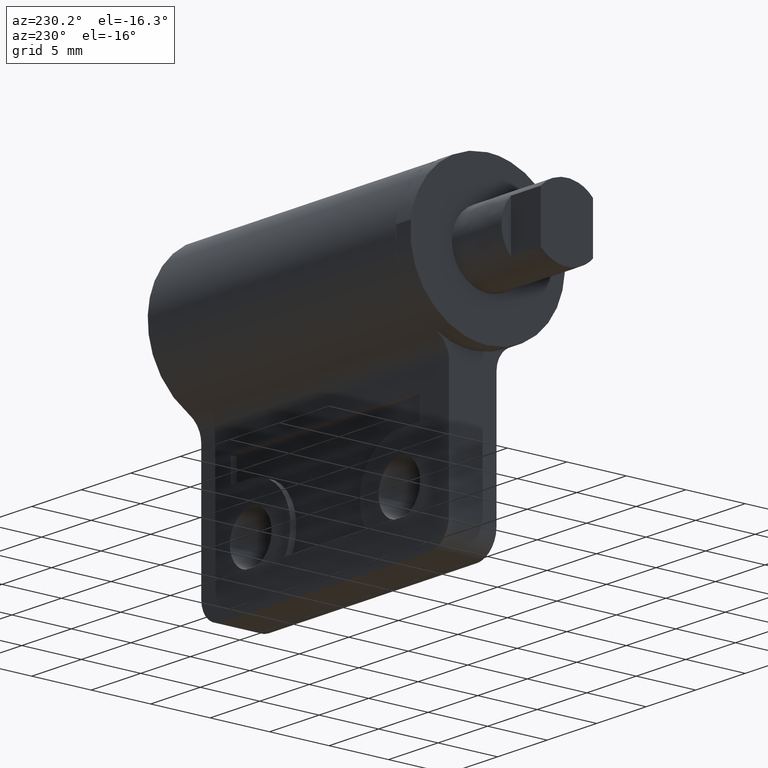
[diagram: clean part render]
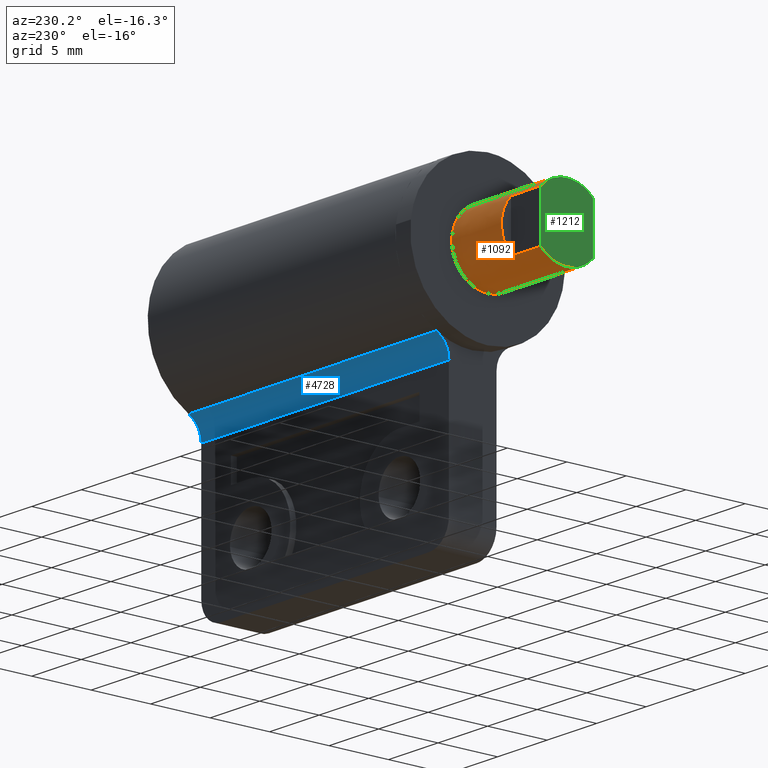
[diagram: same view with three faces highlighted in distinct colors, each labeled with its STEP entity id]
A machine part, auxiliary view with three faces highlighted in distinct colors.
Their STEP definitions:

[orange] entity #1092 — the highlighted face is a freeform B-spline surface patch.
#918=CARTESIAN_POINT('',(5.200000000000002,-0.947927683204385,2.846301654325269));
#919=CARTESIAN_POINT('',(5.200000000000002,-0.520353104034003,2.988700398187908));
#920=CARTESIAN_POINT('',(5.200000000000001,-0.069811827973402,2.999187608115739));
#921=CARTESIAN_POINT('',(5.200000000000001,2.929375780142338,3.068999436089141));
#922=CARTESIAN_POINT('',(5.200000000000001,2.999187608115739,0.069811827973402));
#923=CARTESIAN_POINT('',(5.200000000000001,3.068999436089141,-2.929375780142338));
#924=CARTESIAN_POINT('',(5.200000000000001,0.069811827973402,-2.999187608115739));
#925=CARTESIAN_POINT('',(5.200000000000001,-2.929375780142338,-3.068999436089141));
#926=CARTESIAN_POINT('',(5.200000000000001,-2.999187608115739,-0.069811827973402));
#927=CARTESIAN_POINT('',(-3.205000000000000,-0.947927683204385,2.846301654325269));
#928=CARTESIAN_POINT('',(-3.205000000000000,-0.520353104034003,2.988700398187908));
#929=CARTESIAN_POINT('',(-3.205000000000000,-0.069811827973402,2.999187608115739));
#930=CARTESIAN_POINT('',(-3.205000000000000,2.929375780142338,3.068999436089141));
#931=CARTESIAN_POINT('',(-3.205000000000000,2.999187608115739,0.069811827973402));
#932=CARTESIAN_POINT('',(-3.205000000000000,3.068999436089141,-2.929375780142338));
#933=CARTESIAN_POINT('',(-3.205000000000000,0.069811827973402,-2.999187608115739));
#934=CARTESIAN_POINT('',(-3.205000000000000,-2.929375780142338,-3.068999436089141));
#935=CARTESIAN_POINT('',(-3.205000000000000,-2.999187608115739,-0.069811827973402));
#943=(BOUNDED_SURFACE()B_SPLINE_SURFACE(2,1,((#918,#927),(#919,#928),(#920,#929),(#921,#930),(#922,#931),(#923,#932),(#924,#933),(#925,#934),(#926,#935)),.UNSPECIFIED.,.F.,.F.,.U.)B_SPLINE_SURFACE_WITH_KNOTS((3,2,2,2,3),(2,2),(0.0,0.994112549695428,5.964675298172566,10.935238046649710,15.905800795126840),(0.0,8.405000000000003),.UNSPECIFIED.)GEOMETRIC_REPRESENTATION_ITEM()RATIONAL_B_SPLINE_SURFACE(((0.906274169979695,0.906274169979695),(0.941421356237309,0.941421356237309),(1.0,1.0),(0.707106781186548,0.707106781186548),(1.0,1.0),(0.707106781186548,0.707106781186548),(1.0,1.0),(0.707106781186548,0.707106781186548),(1.0,1.0)))REPRESENTATION_ITEM('')SURFACE());
#944=CARTESIAN_POINT('',(5.0,-0.947927683211403,2.846301654322932));
#945=VERTEX_POINT('',#944);
#946=CARTESIAN_POINT('',(5.0,0.0,3.0));
#947=VERTEX_POINT('',#946);
#948=CARTESIAN_POINT('',(5.0,-0.947927683211403,2.846301654322932));
#949=CARTESIAN_POINT('',(5.0,-0.486424276029893,3.000000000000000));
#950=CARTESIAN_POINT('',(5.0,0.0,3.0));
#958=(BOUNDED_CURVE()B_SPLINE_CURVE(2,(#948,#949,#950),.UNSPECIFIED.,.F.,.U.)B_SPLINE_CURVE_WITH_KNOTS((3,3),(0.946282106302413,1.0),.UNSPECIFIED.)CURVE()GEOMETRIC_REPRESENTATION_ITEM()RATIONAL_B_SPLINE_CURVE((0.901176784606171,0.937065572828139,1.0))REPRESENTATION_ITEM(''));
#959=EDGE_CURVE('',#945,#947,#958,.T.);
#960=ORIENTED_EDGE('',*,*,#959,.T.);
#961=CARTESIAN_POINT('',(5.0,0.0,-3.0));
#962=VERTEX_POINT('',#961);
#963=CARTESIAN_POINT('',(5.0,0.0,3.0));
#964=CARTESIAN_POINT('',(5.000000000000001,3.0,3.0));
#965=CARTESIAN_POINT('',(5.0,3.0,0.0));
#966=CARTESIAN_POINT('',(5.000000000000001,3.0,-3.0));
#967=CARTESIAN_POINT('',(5.0,0.0,-3.0));
#975=(BOUNDED_CURVE()B_SPLINE_CURVE(2,(#963,#964,#965,#966,#967),.UNSPECIFIED.,.F.,.U.)B_SPLINE_CURVE_WITH_KNOTS((3,2,3),(0.0,0.250000000000000,0.500000000000000),.UNSPECIFIED.)CURVE()GEOMETRIC_REPRESENTATION_ITEM()RATIONAL_B_SPLINE_CURVE((1.0,0.707106781186548,1.0,0.707106781186548,1.0))REPRESENTATION_ITEM(''));
#976=EDGE_CURVE('',#947,#962,#975,.T.);
#977=ORIENTED_EDGE('',*,*,#976,.T.);
#978=CARTESIAN_POINT('',(4.999999999999999,-2.999187713842665,-0.069807285540696));
#979=VERTEX_POINT('',#978);
#980=CARTESIAN_POINT('',(5.0,0.0,-3.0));
#981=CARTESIAN_POINT('',(5.000000000000001,-2.930986314326018,-3.000000000000000));
#982=CARTESIAN_POINT('',(4.999999999999999,-2.999187713842665,-0.069807285540696));
#990=(BOUNDED_CURVE()B_SPLINE_CURVE(2,(#980,#981,#982),.UNSPECIFIED.,.F.,.U.)B_SPLINE_CURVE_WITH_KNOTS((3,3),(0.500000000000000,0.745905742958735),.UNSPECIFIED.)CURVE()GEOMETRIC_REPRESENTATION_ITEM()RATIONAL_B_SPLINE_CURVE((1.0,0.711903501680411,0.990563671065530))REPRESENTATION_ITEM(''));
#991=EDGE_CURVE('',#962,#979,#990,.T.);
#992=ORIENTED_EDGE('',*,*,#991,.T.);
#993=CARTESIAN_POINT('',(-3.330669E-016,-2.999187607261801,-0.069811864659457));
#994=VERTEX_POINT('',#993);
#995=CARTESIAN_POINT('',(4.999999999999999,-2.999187713842665,-0.069807285540696));
#996=CARTESIAN_POINT('',(-3.330669E-016,-2.999187607261801,-0.069811864659457));
#997=QUASI_UNIFORM_CURVE('',1,(#995,#996),.UNSPECIFIED.,.F.,.U.);
#998=EDGE_CURVE('',#979,#994,#997,.T.);
#999=ORIENTED_EDGE('',*,*,#998,.T.);
#1000=CARTESIAN_POINT('',(0.0,-2.200000000000000,-2.039607805437110));
#1001=VERTEX_POINT('',#1000);
#1002=CARTESIAN_POINT('',(0.0,-2.200000000000002,-2.039607805437112));
#1003=CARTESIAN_POINT('',(0.0,-2.972738243980980,-1.206102397080520));
#1004=CARTESIAN_POINT('',(-3.330669E-016,-2.999187607261800,-0.069811864659457));
#1012=(BOUNDED_CURVE()B_SPLINE_CURVE(2,(#1002,#1003,#1004),.UNSPECIFIED.,.F.,.U.)B_SPLINE_CURVE_WITH_KNOTS((3,3),(0.0,0.485165814498718),.UNSPECIFIED.)CURVE()GEOMETRIC_REPRESENTATION_ITEM()RATIONAL_B_SPLINE_CURVE((1.0,0.870622449467009,0.866784028298393))REPRESENTATION_ITEM(''));
#1013=EDGE_CURVE('',#1001,#994,#1012,.T.);
#1014=ORIENTED_EDGE('',*,*,#1013,.F.);
#1015=CARTESIAN_POINT('',(-3.0,-2.200000000000000,-2.039607805437110));
#1016=VERTEX_POINT('',#1015);
#1017=CARTESIAN_POINT('',(-3.0,-2.200000000000000,-2.039607805437110));
#1018=CARTESIAN_POINT('',(0.0,-2.200000000000000,-2.039607805437110));
#1019=QUASI_UNIFORM_CURVE('',1,(#1017,#1018),.UNSPECIFIED.,.F.,.U.);
#1020=EDGE_CURVE('',#1016,#1001,#1019,.T.);
#1021=ORIENTED_EDGE('',*,*,#1020,.F.);
#1022=CARTESIAN_POINT('',(-3.0,2.200000000000000,-2.039608000000000));
#1023=VERTEX_POINT('',#1022);
#1024=CARTESIAN_POINT('',(-3.0,2.200000000000000,-2.039608000000000));
#1025=CARTESIAN_POINT('',(-3.0,1.309625606051334,-3.000000031142777));
#1026=CARTESIAN_POINT('',(-3.0,-0.000000071339723,-2.999999999999999));
#1027=CARTESIAN_POINT('',(-3.0,-1.309625748730780,-2.999999968857222));
#1028=CARTESIAN_POINT('',(-3.0,-2.200000000000002,-2.039607805437112));
#1036=(BOUNDED_CURVE()B_SPLINE_CURVE(2,(#1024,#1025,#1026,#1027,#1028),.UNSPECIFIED.,.F.,.U.)B_SPLINE_CURVE_WITH_KNOTS((3,2,3),(0.0,0.500000000000000,1.0),.UNSPECIFIED.)CURVE()GEOMETRIC_REPRESENTATION_ITEM()RATIONAL_B_SPLINE_CURVE((1.0,0.916479483108497,1.0,0.916479483108497,1.0))REPRESENTATION_ITEM(''));
#1037=EDGE_CURVE('',#1023,#1016,#1036,.T.);
#1038=ORIENTED_EDGE('',*,*,#1037,.F.);
#1039=CARTESIAN_POINT('',(0.0,2.200000000000000,-2.039608000000000));
#1040=VERTEX_POINT('',#1039);
#1041=CARTESIAN_POINT('',(-3.0,2.200000000000000,-2.039608000000000));
#1042=CARTESIAN_POINT('',(0.0,2.200000000000000,-2.039608000000000));
#1043=QUASI_UNIFORM_CURVE('',1,(#1041,#1042),.UNSPECIFIED.,.F.,.U.);
#1044=EDGE_CURVE('',#1023,#1040,#1043,.T.);
#1045=ORIENTED_EDGE('',*,*,#1044,.T.);
#1046=CARTESIAN_POINT('',(0.0,2.200000000000000,2.039607805437110));
#1047=VERTEX_POINT('',#1046);
#1048=CARTESIAN_POINT('',(0.0,2.200000000000002,2.039607805437112));
#1049=CARTESIAN_POINT('',(0.0,4.090909181098173,-0.000000097281443));
#1050=CARTESIAN_POINT('',(0.0,2.200000000000000,-2.039608000000000));
#1058=(BOUNDED_CURVE()B_SPLINE_CURVE(2,(#1048,#1049,#1050),.UNSPECIFIED.,.F.,.U.)CURVE()GEOMETRIC_REPRESENTATION_ITEM()QUASI_UNIFORM_CURVE()RATIONAL_B_SPLINE_CURVE((1.0,0.733333317166106,1.0))REPRESENTATION_ITEM(''));
#1059=EDGE_CURVE('',#1047,#1040,#1058,.T.);
#1060=ORIENTED_EDGE('',*,*,#1059,.F.);
#1061=CARTESIAN_POINT('',(-3.0,2.200000000000000,2.039607999999790));
#1062=VERTEX_POINT('',#1061);
#1063=CARTESIAN_POINT('',(-3.0,2.200000000000000,2.039607999999790));
#1064=CARTESIAN_POINT('',(0.0,2.200000000000000,2.039607805437110));
#1065=QUASI_UNIFORM_CURVE('',1,(#1063,#1064),.UNSPECIFIED.,.F.,.U.);
#1066=EDGE_CURVE('',#1062,#1047,#1065,.T.);
#1067=ORIENTED_EDGE('',*,*,#1066,.F.);
#1068=CARTESIAN_POINT('',(-2.999999999999999,-0.947926840408719,2.846301944789479));
#1069=VERTEX_POINT('',#1068);
#1070=CARTESIAN_POINT('',(-3.000000000000000,-0.947926840408719,2.846301944789479));
#1071=CARTESIAN_POINT('',(-3.000000000000000,-0.486423355966698,3.000000000000000));
#1072=CARTESIAN_POINT('',(-3.0,0.0,3.0));
#1073=CARTESIAN_POINT('',(-3.000000000000000,1.309625634923723,3.000000000000000));
#1074=CARTESIAN_POINT('',(-3.0,2.200000000000000,2.039607999999790));
#1082=(BOUNDED_CURVE()B_SPLINE_CURVE(2,(#1070,#1071,#1072,#1073,#1074),.UNSPECIFIED.,.F.,.U.)B_SPLINE_CURVE_WITH_KNOTS((3,2,3),(0.303999281456258,0.500000000000000,1.0),.UNSPECIFIED.)CURVE()GEOMETRIC_REPRESENTATION_ITEM()RATIONAL_B_SPLINE_CURVE((0.960188058588786,0.967259839216970,1.0,0.916479487865440,1.0))REPRESENTATION_ITEM(''));
#1083=EDGE_CURVE('',#1069,#1062,#1082,.T.);
#1084=ORIENTED_EDGE('',*,*,#1083,.F.);
#1085=CARTESIAN_POINT('',(5.0,-0.947927683211403,2.846301654322932));
#1086=CARTESIAN_POINT('',(-2.999999999999999,-0.947926840408719,2.846301944789479));
#1087=QUASI_UNIFORM_CURVE('',1,(#1085,#1086),.UNSPECIFIED.,.F.,.U.);
#1088=EDGE_CURVE('',#945,#1069,#1087,.T.);
#1089=ORIENTED_EDGE('',*,*,#1088,.F.);
#1090=EDGE_LOOP('',(#960,#977,#992,#999,#1014,#1021,#1038,#1045,#1060,#1067,#1084,#1089));
#1091=FACE_OUTER_BOUND('',#1090,.T.);
#1092=ADVANCED_FACE('',(#1091),#943,.T.);

[blue] entity #4728 — the highlighted face is a freeform B-spline surface patch.
#4557=CARTESIAN_POINT('',(31.500000000000000,1.999999999999800,-7.500000000000000));
#4558=VERTEX_POINT('',#4557);
#4564=CARTESIAN_POINT('',(31.500000000000000,3.058823527436040,-5.735294118700780));
#4565=VERTEX_POINT('',#4564);
#4566=CARTESIAN_POINT('',(31.500000000000000,3.058823527436040,-5.735294118700779));
#4567=CARTESIAN_POINT('',(31.500000000000000,2.0,-6.300000001522625));
#4568=CARTESIAN_POINT('',(31.500000000000000,1.999999999999800,-7.500000000000000));
#4576=(BOUNDED_CURVE()B_SPLINE_CURVE(2,(#4566,#4567,#4568),.UNSPECIFIED.,.F.,.U.)CURVE()GEOMETRIC_REPRESENTATION_ITEM()QUASI_UNIFORM_CURVE()RATIONAL_B_SPLINE_CURVE((1.0,0.857492926000553,1.0))REPRESENTATION_ITEM(''));
#4577=EDGE_CURVE('',#4565,#4558,#4576,.T.);
#4627=CARTESIAN_POINT('',(6.500000000000000,1.999999999999800,-7.500000000000000));
#4628=VERTEX_POINT('',#4627);
#4657=CARTESIAN_POINT('',(6.500000000000000,3.058823527436040,-5.735294118700780));
#4658=VERTEX_POINT('',#4657);
#4678=CARTESIAN_POINT('',(6.500000000000000,3.058823527436040,-5.735294118700779));
#4679=CARTESIAN_POINT('',(6.500000000000001,2.0,-6.300000001522625));
#4680=CARTESIAN_POINT('',(6.500000000000000,1.999999999999800,-7.500000000000000));
#4688=(BOUNDED_CURVE()B_SPLINE_CURVE(2,(#4678,#4679,#4680),.UNSPECIFIED.,.F.,.U.)CURVE()GEOMETRIC_REPRESENTATION_ITEM()QUASI_UNIFORM_CURVE()RATIONAL_B_SPLINE_CURVE((1.0,0.857492926000553,1.0))REPRESENTATION_ITEM(''));
#4689=EDGE_CURVE('',#4658,#4628,#4688,.T.);
#4700=CARTESIAN_POINT('',(5.874999999999998,2.000076153871658,-7.517453070996746));
#4701=CARTESIAN_POINT('',(32.140625000000000,2.000076153871658,-7.517453070996746));
#4702=CARTESIAN_POINT('',(5.874999999999998,1.988957321379869,-6.243361064748639));
#4703=CARTESIAN_POINT('',(32.140624999999993,1.988957321379869,-6.243361064748639));
#4704=CARTESIAN_POINT('',(5.874999999999998,3.138977806383410,-5.694829431300279));
#4705=CARTESIAN_POINT('',(32.140625000000000,3.138977806383410,-5.694829431300279));
#4713=(BOUNDED_SURFACE()B_SPLINE_SURFACE(1,2,((#4700,#4702,#4704),(#4701,#4703,#4705)),.UNSPECIFIED.,.F.,.F.,.U.)B_SPLINE_SURFACE_WITH_KNOTS((2,2),(3,3),(0.0,26.265625000000000),(0.0,2.331787356688700),.UNSPECIFIED.)GEOMETRIC_REPRESENTATION_ITEM()RATIONAL_B_SPLINE_SURFACE(((1.0,0.843391445812886,1.0),(1.0,0.843391445812886,1.0)))REPRESENTATION_ITEM('')SURFACE());
#4714=ORIENTED_EDGE('',*,*,#4577,.T.);
#4715=CARTESIAN_POINT('',(6.500000000000000,1.999999999999800,-7.500000000000000));
#4716=CARTESIAN_POINT('',(31.500000000000000,1.999999999999800,-7.500000000000000));
#4717=QUASI_UNIFORM_CURVE('',1,(#4715,#4716),.UNSPECIFIED.,.F.,.U.);
#4718=EDGE_CURVE('',#4628,#4558,#4717,.T.);
#4719=ORIENTED_EDGE('',*,*,#4718,.F.);
#4720=ORIENTED_EDGE('',*,*,#4689,.F.);
#4721=CARTESIAN_POINT('',(6.500000000000000,3.058823527436040,-5.735294118700780));
#4722=CARTESIAN_POINT('',(31.500000000000000,3.058823527436040,-5.735294118700780));
#4723=QUASI_UNIFORM_CURVE('',1,(#4721,#4722),.UNSPECIFIED.,.F.,.U.);
#4724=EDGE_CURVE('',#4658,#4565,#4723,.T.);
#4725=ORIENTED_EDGE('',*,*,#4724,.T.);
#4726=EDGE_LOOP('',(#4714,#4719,#4720,#4725));
#4727=FACE_OUTER_BOUND('',#4726,.T.);
#4728=ADVANCED_FACE('',(#4727),#4713,.F.);

[green] entity #1212 — the highlighted face is a freeform B-spline surface patch.
#1015=CARTESIAN_POINT('',(-3.0,-2.200000000000000,-2.039607805437110));
#1016=VERTEX_POINT('',#1015);
#1022=CARTESIAN_POINT('',(-3.0,2.200000000000000,-2.039608000000000));
#1023=VERTEX_POINT('',#1022);
#1024=CARTESIAN_POINT('',(-3.0,2.200000000000000,-2.039608000000000));
#1025=CARTESIAN_POINT('',(-3.0,1.309625606051334,-3.000000031142777));
#1026=CARTESIAN_POINT('',(-3.0,-0.000000071339723,-2.999999999999999));
#1027=CARTESIAN_POINT('',(-3.0,-1.309625748730780,-2.999999968857222));
#1028=CARTESIAN_POINT('',(-3.0,-2.200000000000002,-2.039607805437112));
#1036=(BOUNDED_CURVE()B_SPLINE_CURVE(2,(#1024,#1025,#1026,#1027,#1028),.UNSPECIFIED.,.F.,.U.)B_SPLINE_CURVE_WITH_KNOTS((3,2,3),(0.0,0.500000000000000,1.0),.UNSPECIFIED.)CURVE()GEOMETRIC_REPRESENTATION_ITEM()RATIONAL_B_SPLINE_CURVE((1.0,0.916479483108497,1.0,0.916479483108497,1.0))REPRESENTATION_ITEM(''));
#1037=EDGE_CURVE('',#1023,#1016,#1036,.T.);
#1061=CARTESIAN_POINT('',(-3.0,2.200000000000000,2.039607999999790));
#1062=VERTEX_POINT('',#1061);
#1068=CARTESIAN_POINT('',(-2.999999999999999,-0.947926840408719,2.846301944789479));
#1069=VERTEX_POINT('',#1068);
#1070=CARTESIAN_POINT('',(-3.000000000000000,-0.947926840408719,2.846301944789479));
#1071=CARTESIAN_POINT('',(-3.000000000000000,-0.486423355966698,3.000000000000000));
#1072=CARTESIAN_POINT('',(-3.0,0.0,3.0));
#1073=CARTESIAN_POINT('',(-3.000000000000000,1.309625634923723,3.000000000000000));
#1074=CARTESIAN_POINT('',(-3.0,2.200000000000000,2.039607999999790));
#1082=(BOUNDED_CURVE()B_SPLINE_CURVE(2,(#1070,#1071,#1072,#1073,#1074),.UNSPECIFIED.,.F.,.U.)B_SPLINE_CURVE_WITH_KNOTS((3,2,3),(0.303999281456258,0.500000000000000,1.0),.UNSPECIFIED.)CURVE()GEOMETRIC_REPRESENTATION_ITEM()RATIONAL_B_SPLINE_CURVE((0.960188058588786,0.967259839216970,1.0,0.916479487865440,1.0))REPRESENTATION_ITEM(''));
#1083=EDGE_CURVE('',#1069,#1062,#1082,.T.);
#1123=CARTESIAN_POINT('',(-3.0,-2.200000000000000,2.039607999999790));
#1124=VERTEX_POINT('',#1123);
#1125=CARTESIAN_POINT('',(-3.0,-2.200000000000000,2.039607999999790));
#1126=CARTESIAN_POINT('',(-3.0,-1.677325598944395,2.603384691095004));
#1127=CARTESIAN_POINT('',(-2.999999999999999,-0.947926840408719,2.846301944789478));
#1135=(BOUNDED_CURVE()B_SPLINE_CURVE(2,(#1125,#1126,#1127),.UNSPECIFIED.,.F.,.U.)B_SPLINE_CURVE_WITH_KNOTS((3,3),(0.0,0.303999281456258),.UNSPECIFIED.)CURVE()GEOMETRIC_REPRESENTATION_ITEM()RATIONAL_B_SPLINE_CURVE((1.0,0.949219648648470,0.960188058588786))REPRESENTATION_ITEM(''));
#1136=EDGE_CURVE('',#1124,#1069,#1135,.T.);
#1192=CARTESIAN_POINT('',(-3.0,2.419780074080049,-3.299680245617330));
#1193=CARTESIAN_POINT('',(-3.0,-2.419780113419115,-3.299680245617330));
#1194=CARTESIAN_POINT('',(-3.0,2.419780074080049,3.299285156229436));
#1195=CARTESIAN_POINT('',(-3.0,-2.419780113419115,3.299285156229436));
#1196=B_SPLINE_SURFACE_WITH_KNOTS('',1,1,((#1192,#1194),(#1193,#1195)),.UNSPECIFIED.,.F.,.F.,.U.,(2,2),(2,2),(0.0,4.839560187499164),(0.0,6.598965401846765),.UNSPECIFIED.);
#1197=ORIENTED_EDGE('',*,*,#1136,.T.);
#1198=ORIENTED_EDGE('',*,*,#1083,.T.);
#1199=CARTESIAN_POINT('',(-3.0,2.200000000000000,2.039607999999790));
#1200=CARTESIAN_POINT('',(-3.0,2.200000000000000,-2.039608000000000));
#1201=QUASI_UNIFORM_CURVE('',1,(#1199,#1200),.UNSPECIFIED.,.F.,.U.);
#1202=EDGE_CURVE('',#1062,#1023,#1201,.T.);
#1203=ORIENTED_EDGE('',*,*,#1202,.T.);
#1204=ORIENTED_EDGE('',*,*,#1037,.T.);
#1205=CARTESIAN_POINT('',(-3.0,-2.200000000000000,-2.039607805437110));
#1206=CARTESIAN_POINT('',(-3.0,-2.200000000000000,2.039607999999790));
#1207=QUASI_UNIFORM_CURVE('',1,(#1205,#1206),.UNSPECIFIED.,.F.,.U.);
#1208=EDGE_CURVE('',#1016,#1124,#1207,.T.);
#1209=ORIENTED_EDGE('',*,*,#1208,.T.);
#1210=EDGE_LOOP('',(#1197,#1198,#1203,#1204,#1209));
#1211=FACE_OUTER_BOUND('',#1210,.T.);
#1212=ADVANCED_FACE('',(#1211),#1196,.T.);